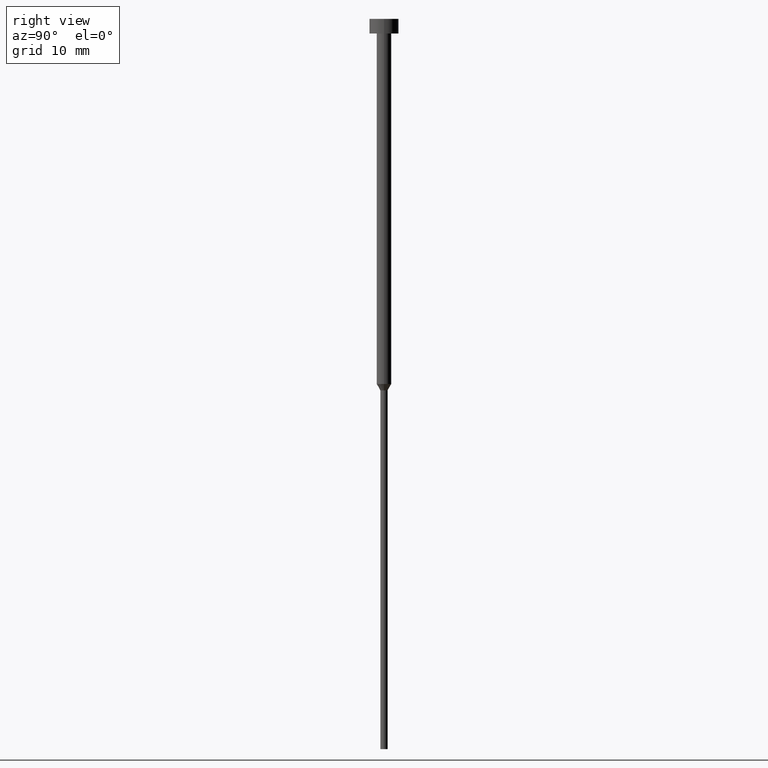
[diagram: clean part render]
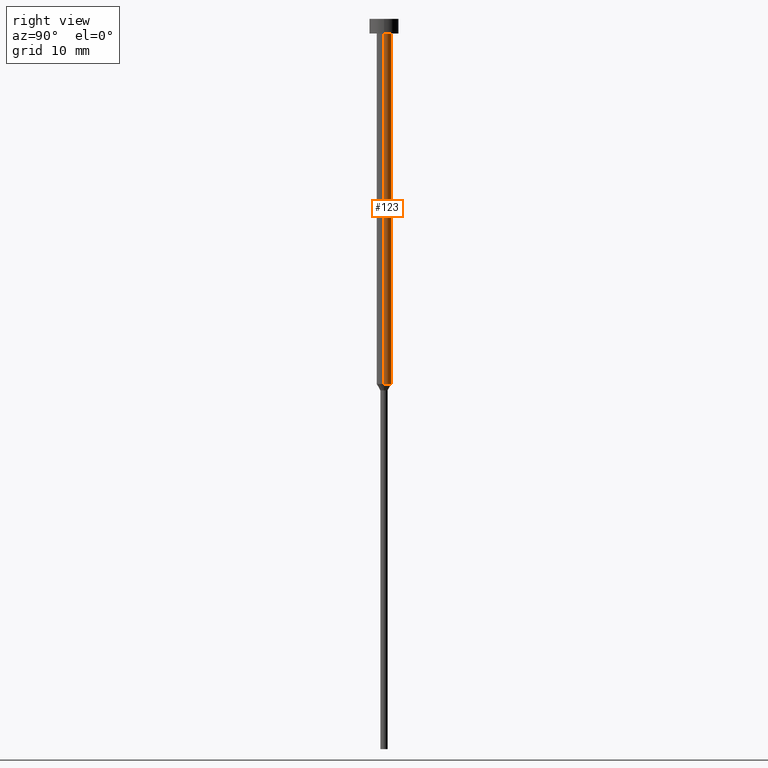
[diagram: same view with one face highlighted and labeled with its STEP entity id]
A machine part, right view. The second image highlights one B-rep face of the part: STEP entity #123.
In plain terms, the highlighted cylindrical surface (edge-blend (fillet) strip) has radius 1 mm, axis along (-0, -0, 1).
Its self-contained STEP definition (entity closure, byte-faithful):
#2 = CIRCLE ( 'NONE', #113, 1.000000000000003109 ) ;
#8 = EDGE_CURVE ( 'NONE', #125, #93, #2, .T. ) ;
#12 = CIRCLE ( 'NONE', #80, 1.000000000000003553 ) ;
#19 = CARTESIAN_POINT ( 'NONE',  ( -1.000000000000003553, 1.224646799147357398E-16, -2.000000000000000444 ) ) ;
#27 = DIRECTION ( 'NONE',  ( -0.000000000000000000, -0.000000000000000000, 1.000000000000000000 ) ) ;
#62 = ORIENTED_EDGE ( 'NONE', *, *, #8, .T. ) ;
#65 = EDGE_CURVE ( 'NONE', #125, #321, #302, .T. ) ;
#71 = ORIENTED_EDGE ( 'NONE', *, *, #65, .F. ) ;
#75 = LINE ( 'NONE', #353, #343 ) ;
#80 = AXIS2_PLACEMENT_3D ( 'NONE', #349, #100, #286 ) ;
#93 = VERTEX_POINT ( 'NONE', #191 ) ;
#99 = DIRECTION ( 'NONE',  ( 1.000000000000000000, 0.000000000000000000, 0.000000000000000000 ) ) ;
#100 = DIRECTION ( 'NONE',  ( -0.000000000000000000, -0.000000000000000000, 1.000000000000000000 ) ) ;
#101 = VERTEX_POINT ( 'NONE', #19 ) ;
#113 = AXIS2_PLACEMENT_3D ( 'NONE', #281, #351, #99 ) ;
#115 = EDGE_CURVE ( 'NONE', #93, #101, #75, .T. ) ;
#123 = ADVANCED_FACE ( 'NONE', ( #301 ), #232, .T. ) ;
#125 = VERTEX_POINT ( 'NONE', #204 ) ;
#138 = VECTOR ( 'NONE', #27, 1000.000000000000000 ) ;
#152 = EDGE_CURVE ( 'NONE', #321, #101, #12, .T. ) ;
#155 = ORIENTED_EDGE ( 'NONE', *, *, #115, .T. ) ;
#182 = ORIENTED_EDGE ( 'NONE', *, *, #152, .F. ) ;
#191 = CARTESIAN_POINT ( 'NONE',  ( -1.000000000000003109, 1.224646799147356905E-16, -50.00000000000000000 ) ) ;
#202 = DIRECTION ( 'NONE',  ( -0.000000000000000000, -0.000000000000000000, 1.000000000000000000 ) ) ;
#204 = CARTESIAN_POINT ( 'NONE',  ( 1.000000000000003109, 0.000000000000000000, -50.00000000000000000 ) ) ;
#232 = CYLINDRICAL_SURFACE ( 'NONE', #345, 1.000000000000003331 ) ;
#235 = DIRECTION ( 'NONE',  ( 1.000000000000000000, 0.000000000000000000, 0.000000000000000000 ) ) ;
#262 = CARTESIAN_POINT ( 'NONE',  ( 0.000000000000000000, 0.000000000000000000, 0.000000000000000000 ) ) ;
#267 = DIRECTION ( 'NONE',  ( -0.000000000000000000, -0.000000000000000000, 1.000000000000000000 ) ) ;
#268 = EDGE_LOOP ( 'NONE', ( #62, #155, #182, #71 ) ) ;
#278 = CARTESIAN_POINT ( 'NONE',  ( 1.000000000000003331, 0.000000000000000000, 0.000000000000000000 ) ) ;
#281 = CARTESIAN_POINT ( 'NONE',  ( 0.000000000000000000, 0.000000000000000000, -50.00000000000000000 ) ) ;
#286 = DIRECTION ( 'NONE',  ( 1.000000000000000000, 0.000000000000000000, 0.000000000000000000 ) ) ;
#301 = FACE_OUTER_BOUND ( 'NONE', #268, .T. ) ;
#302 = LINE ( 'NONE', #278, #138 ) ;
#321 = VERTEX_POINT ( 'NONE', #352 ) ;
#343 = VECTOR ( 'NONE', #202, 1000.000000000000000 ) ;
#345 = AXIS2_PLACEMENT_3D ( 'NONE', #262, #267, #235 ) ;
#349 = CARTESIAN_POINT ( 'NONE',  ( 0.000000000000000000, 0.000000000000000000, -2.000000000000000444 ) ) ;
#351 = DIRECTION ( 'NONE',  ( -0.000000000000000000, -0.000000000000000000, 1.000000000000000000 ) ) ;
#352 = CARTESIAN_POINT ( 'NONE',  ( 1.000000000000003553, 0.000000000000000000, -2.000000000000000444 ) ) ;
#353 = CARTESIAN_POINT ( 'NONE',  ( -1.000000000000003331, 1.224646799147357151E-16, 0.000000000000000000 ) ) ;